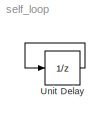
MODEL self_loop
KIND model
BLOCK [UnitDelay] Unit Delay
LINE Unit Delay:1 -> Unit Delay:1
